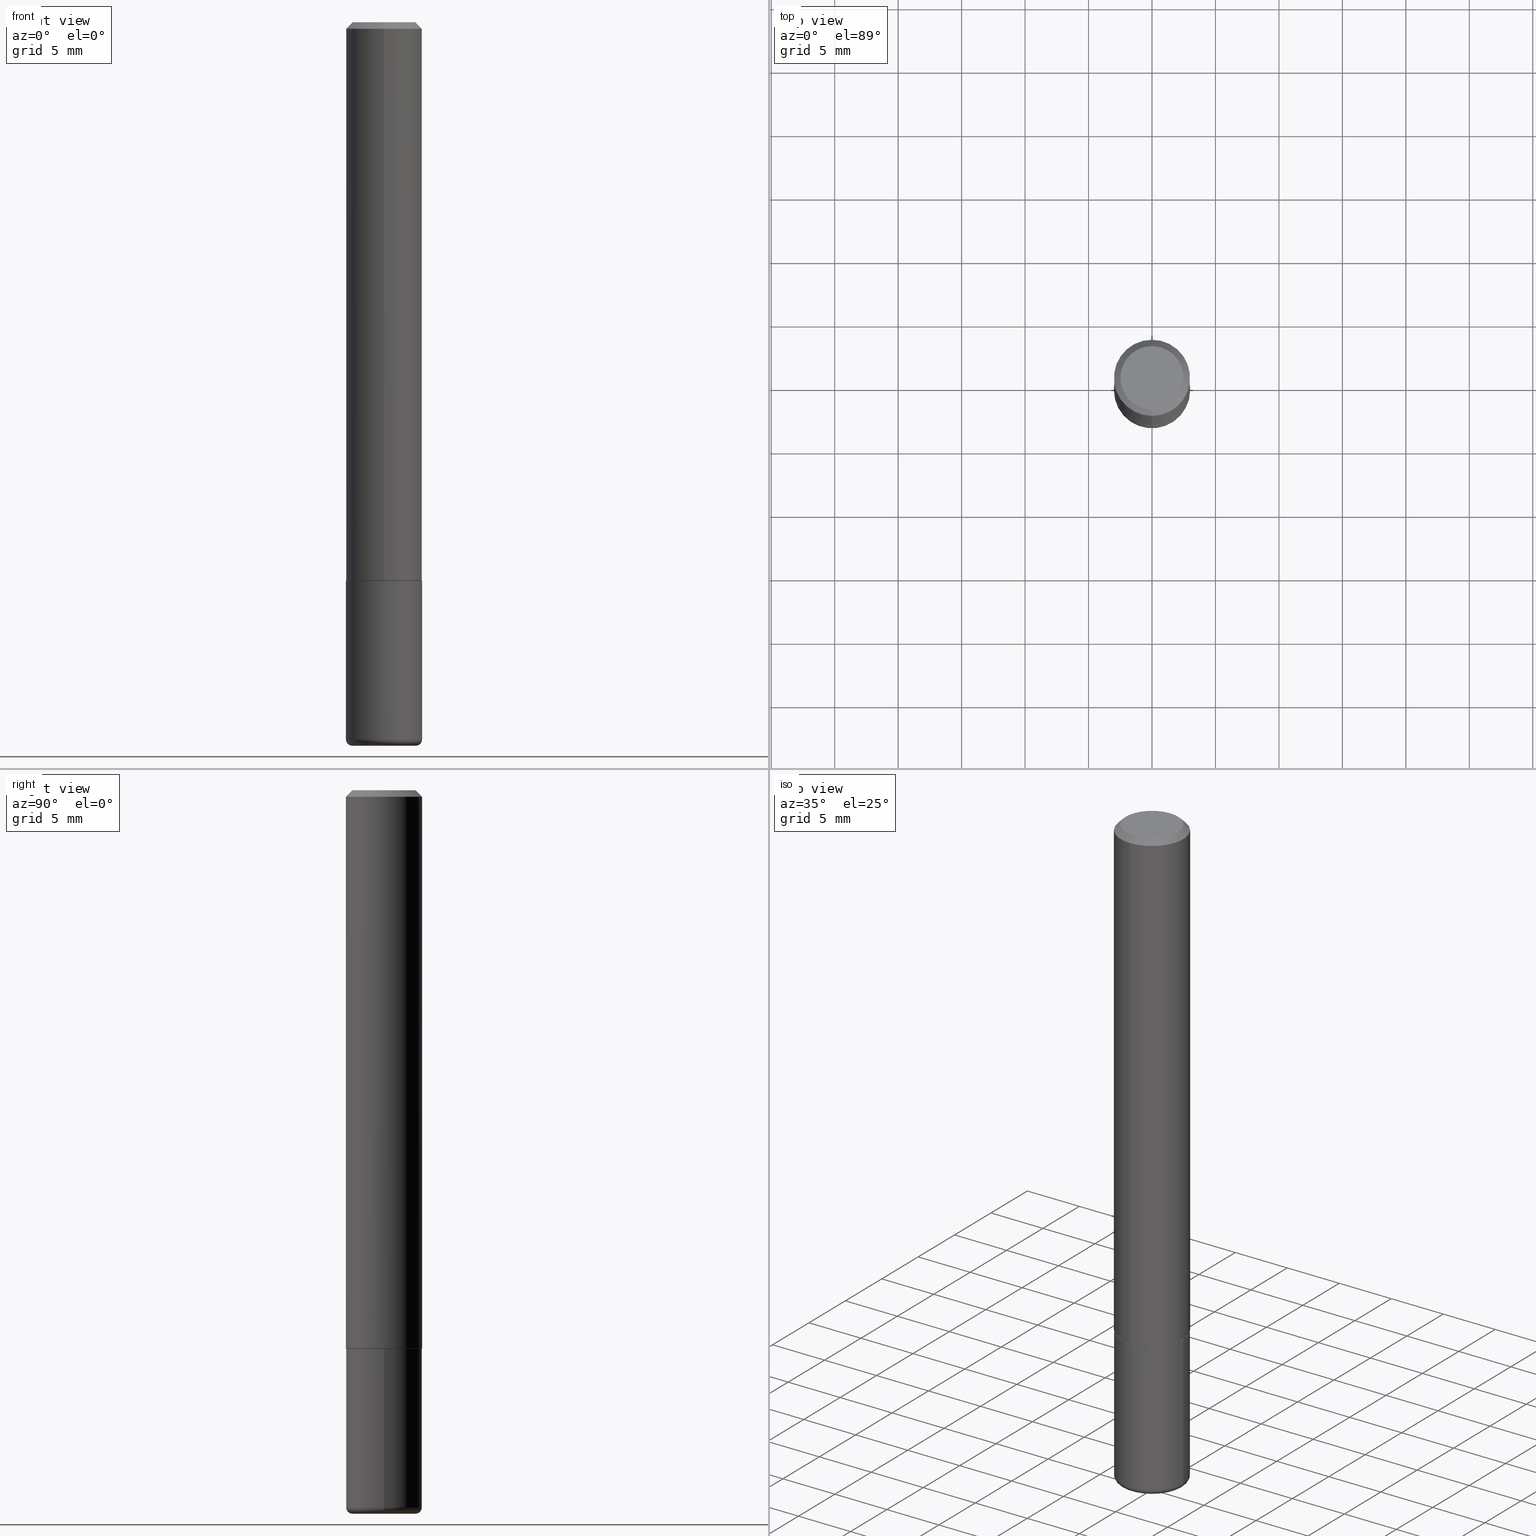
[diagram: canonical four-view strip — front | top / right | iso, engineering-drawing reading convention]
A machine part, canonical four-view strip (front | top / right | iso — engineering-drawing reading convention). The complete STEP part file that produces these views, byte-faithful:
ISO-10303-21;
HEADER;
FILE_DESCRIPTION (( 'STEP AP203' ),
    '1' );
FILE_NAME ('47120.STEP',
    '2024-03-05T20:40:49',
    ( '' ),
    ( '' ),
    'SwSTEP 2.0',
    'SolidWorks 2023',
    '' );
FILE_SCHEMA (( 'CONFIG_CONTROL_DESIGN' ));
ENDSEC;

DATA;
#1 = CONICAL_SURFACE ( 'NONE', #406, 0.1181000000000000383, 0.7853981633974473908 ) ;
#2 = DIRECTION ( 'NONE',  ( -1.000000000000000000, 6.982962677686265922E-15, -4.876176775795935793E-29 ) ) ;
#3 = CARTESIAN_POINT ( 'NONE',  ( 0.000000000000000000, 0.000000000000000000, 0.000000000000000000 ) ) ;
#4 = EDGE_CURVE ( 'NONE', #271, #364, #227, .T. ) ;
#5 = DIRECTION ( 'NONE',  ( -2.439979117146422706E-29, 3.499342886000279626E-15, 1.000000000000000000 ) ) ;
#6 = CIRCLE ( 'NONE', #399, 0.1181000000000000383 ) ;
#7 = AXIS2_PLACEMENT_3D ( 'NONE', #192, #72, #360 ) ;
#8 = APPLICATION_CONTEXT ( 'configuration controlled 3d designs of mechanical parts and assemblies' ) ;
#9 = DIRECTION ( 'NONE',  ( -2.439979117146422706E-29, 3.499342886000279626E-15, 1.000000000000000000 ) ) ;
#10 = EDGE_CURVE ( 'NONE', #392, #271, #176, .T. ) ;
#11 = CARTESIAN_POINT ( 'NONE',  ( 4.226775824632747097E-29, -6.061911681418283970E-15, -1.732299999999999729 ) ) ;
#12 = EDGE_LOOP ( 'NONE', ( #266, #337, #55, #304 ) ) ;
#13 = DIRECTION ( 'NONE',  ( -2.439979117146422706E-29, 3.499342886000279626E-15, 1.000000000000000000 ) ) ;
#14 = ORIENTED_EDGE ( 'NONE', *, *, #230, .F. ) ;
#15 = EDGE_CURVE ( 'NONE', #139, #248, #133, .T. ) ;
#16 = AXIS2_PLACEMENT_3D ( 'NONE', #200, #146, #144 ) ;
#17 = PERSON_AND_ORGANIZATION ( #265, #331 ) ;
#18 = ORIENTED_EDGE ( 'NONE', *, *, #223, .F. ) ;
#19 = ADVANCED_FACE ( 'NONE', ( #356 ), #323, .F. ) ;
#20 = MANIFOLD_SOLID_BREP ( 'Body-Move/Copy2[2]', #412 ) ;
#21 = ORIENTED_EDGE ( 'NONE', *, *, #10, .F. ) ;
#22 = ADVANCED_FACE ( 'NONE', ( #388 ), #218, .T. ) ;
#23 = EDGE_LOOP ( 'NONE', ( #110, #408, #53, #173 ) ) ;
#24 = CIRCLE ( 'NONE', #119, 0.09809999999999970133 ) ;
#25 = CC_DESIGN_SECURITY_CLASSIFICATION ( #204, ( #198 ) ) ;
#26 = COORDINATED_UNIVERSAL_TIME_OFFSET ( 5, 0, .BEHIND. ) ;
#27 = ORIENTED_EDGE ( 'NONE', *, *, #4, .F. ) ;
#28 = PERSON_AND_ORGANIZATION ( #265, #331 ) ;
#29 = ORIENTED_EDGE ( 'NONE', *, *, #362, .T. ) ;
#30 = EDGE_CURVE ( 'NONE', #248, #242, #183, .T. ) ;
#31 = CALENDAR_DATE ( 2024, 5, 3 ) ;
#32 = DIRECTION ( 'NONE',  ( -2.445468806185136597E-29, 3.491481338843145583E-15, 1.000000000000000000 ) ) ;
#33 = ADVANCED_FACE ( 'NONE', ( #216 ), #352, .T. ) ;
#34 = DIRECTION ( 'NONE',  ( -4.937700262164884886E-15, -0.7071067811865933139, 0.7071067811865017205 ) ) ;
#35 = APPROVAL_DATE_TIME ( #66, #141 ) ;
#36 = CARTESIAN_POINT ( 'NONE',  ( -0.09840000000000002911, -7.067277038134753844E-15, -2.224399999999999711 ) ) ;
#37 = CARTESIAN_POINT ( 'NONE',  ( 5.439700812478218014E-29, -7.766451090122692732E-15, -2.224399999999999711 ) ) ;
#38 = EDGE_CURVE ( 'NONE', #168, #334, #128, .T. ) ;
#39 = DIRECTION ( 'NONE',  ( -2.439979117146422425E-29, 3.499342886000280020E-15, 1.000000000000000000 ) ) ;
#40 = AXIS2_PLACEMENT_3D ( 'NONE', #36, #181, #284 ) ;
#41 = CARTESIAN_POINT ( 'NONE',  ( 7.548582654578846686E-16, 0.09809999999999970133, -5.225547001368359954E-17 ) ) ;
#42 = EDGE_CURVE ( 'NONE', #244, #364, #124, .T. ) ;
#43 = CARTESIAN_POINT ( 'NONE',  ( 0.000000000000000000, 0.000000000000000000, 0.000000000000000000 ) ) ;
#44 = CYLINDRICAL_SURFACE ( 'NONE', #365, 0.1181000000000001354 ) ;
#45 = VECTOR ( 'NONE', #306, 39.37007874015748143 ) ;
#46 = DIRECTION ( 'NONE',  ( -2.439979117146422706E-29, 3.499342886000279626E-15, 1.000000000000000000 ) ) ;
#47 = ORIENTED_EDGE ( 'NONE', *, *, #257, .T. ) ;
#48 = DIRECTION ( 'NONE',  ( -2.439979117146422706E-29, 3.499342886000279626E-15, 1.000000000000000000 ) ) ;
#49 = ADVANCED_FACE ( 'NONE', ( #381 ), #405, .T. ) ;
#50 = CALENDAR_DATE ( 2024, 5, 3 ) ;
#51 = ORIENTED_EDGE ( 'NONE', *, *, #230, .T. ) ;
#52 = AXIS2_PLACEMENT_3D ( 'NONE', #91, #254, #2 ) ;
#53 = ORIENTED_EDGE ( 'NONE', *, *, #4, .T. ) ;
#54 = DIRECTION ( 'NONE',  ( 5.024295867788404755E-15, 0.7071067811865981989, 0.7071067811864968355 ) ) ;
#55 = ORIENTED_EDGE ( 'NONE', *, *, #389, .T. ) ;
#56 = APPROVAL_DATE_TIME ( #340, #207 ) ;
#57 = ORIENTED_EDGE ( 'NONE', *, *, #401, .F. ) ;
#58 = CALENDAR_DATE ( 2024, 5, 3 ) ;
#59 = ORIENTED_EDGE ( 'NONE', *, *, #349, .F. ) ;
#60 = CARTESIAN_POINT ( 'NONE',  ( -0.1181000000000000522, -6.927300119190015324E-15, -2.224399999999999711 ) ) ;
#61 = CARTESIAN_POINT ( 'NONE',  ( -7.101072861929026047E-45, 1.018413994928867138E-30, 2.910300671029427939E-16 ) ) ;
#62 = PLANE ( 'NONE',  #385 ) ;
#63 = APPROVAL ( #270, 'UNSPECIFIED' ) ;
#64 = EDGE_CURVE ( 'NONE', #168, #231, #184, .T. ) ;
#65 = DIRECTION ( 'NONE',  ( -6.982962677686265922E-15, -1.000000000000000000, 3.505890868245044514E-15 ) ) ;
#66 = DATE_AND_TIME ( #31, #400 ) ;
#67 = DIRECTION ( 'NONE',  ( 1.000000000000000000, -6.982962677686269077E-15, 4.883557194083113462E-29 ) ) ;
#68 = DIRECTION ( 'NONE',  ( -2.445468806185136597E-29, 3.491481338843145583E-15, 1.000000000000000000 ) ) ;
#69 = VECTOR ( 'NONE', #39, 39.37007874015748143 ) ;
#70 = CC_DESIGN_PERSON_AND_ORGANIZATION_ASSIGNMENT ( #28, #123, ( #198 ) ) ;
#71 = FACE_OUTER_BOUND ( 'NONE', #151, .T. ) ;
#72 = DIRECTION ( 'NONE',  ( -2.445468806185136597E-29, 3.491481338843145583E-15, 1.000000000000000000 ) ) ;
#73 = DIRECTION ( 'NONE',  ( -2.445468806185136597E-29, 3.491481338843145583E-15, 1.000000000000000000 ) ) ;
#74 = ORIENTED_EDGE ( 'NONE', *, *, #189, .T. ) ;
#75 = CIRCLE ( 'NONE', #7, 0.1181000000000000383 ) ;
#76 = CIRCLE ( 'NONE', #190, 0.01970000000000002999 ) ;
#77 = DIRECTION ( 'NONE',  ( 4.937700262164543309E-15, 0.7071067811865444641, -0.7071067811865505703 ) ) ;
#78 = VERTEX_POINT ( 'NONE', #283 ) ;
#79 = DIRECTION ( 'NONE',  ( -6.982962677686265133E-15, -1.000000000000000000, 4.626330217890359081E-15 ) ) ;
#80 = ORIENTED_EDGE ( 'NONE', *, *, #226, .F. ) ;
#81 = CC_DESIGN_PERSON_AND_ORGANIZATION_ASSIGNMENT ( #272, #245, ( #318 ) ) ;
#82 = LOCAL_TIME ( 15, 40, 49.00000000000000000, #282 ) ;
#83 = ORIENTED_EDGE ( 'NONE', *, *, #349, .T. ) ;
#84 = PRODUCT_DEFINITION_SHAPE ( 'NONE', 'NONE',  #130 ) ;
#85 = APPROVAL_STATUS ( 'not_yet_approved' ) ;
#86 = ORIENTED_EDGE ( 'NONE', *, *, #30, .T. ) ;
#87 = APPLICATION_PROTOCOL_DEFINITION ( 'international standard', 'config_control_design', 1994, #232 ) ;
#88 = ORIENTED_EDGE ( 'NONE', *, *, #125, .T. ) ;
#89 = CIRCLE ( 'NONE', #196, 0.1181000000000000383 ) ;
#90 = CALENDAR_DATE ( 2024, 5, 3 ) ;
#91 = CARTESIAN_POINT ( 'NONE',  ( 5.487876547960064752E-29, -7.835233272497900762E-15, -2.244099999999999540 ) ) ;
#92 = COORDINATED_UNIVERSAL_TIME_OFFSET ( 5, 0, .BEHIND. ) ;
#93 = DIRECTION ( 'NONE',  ( -2.439979117146422706E-29, 3.499342886000279626E-15, 1.000000000000000000 ) ) ;
#94 = DIRECTION ( 'NONE',  ( 1.000000000000000000, -6.982962677686262766E-15, 0.000000000000000000 ) ) ;
#95 = CIRCLE ( 'NONE', #158, 0.09840000000000002911 ) ;
#96 =( GEOMETRIC_REPRESENTATION_CONTEXT ( 3 ) GLOBAL_UNCERTAINTY_ASSIGNED_CONTEXT ( ( #256 ) ) GLOBAL_UNIT_ASSIGNED_CONTEXT ( ( #338, #369, #172 ) ) REPRESENTATION_CONTEXT ( 'NONE', 'WORKASPACE' ) );
#97 = CARTESIAN_POINT ( 'NONE',  ( 4.236285612954511832E-29, -6.048293123277980289E-15, -1.732299999999999729 ) ) ;
#98 = DESIGN_CONTEXT ( 'detailed design', #232, 'design' ) ;
#99 = CARTESIAN_POINT ( 'NONE',  ( 5.439700812478216893E-29, -7.766451090122692732E-15, -2.224399999999999711 ) ) ;
#100 = DIRECTION ( 'NONE',  ( -6.982962677686265922E-15, -1.000000000000000000, 3.499342886000279626E-15 ) ) ;
#101 = CARTESIAN_POINT ( 'NONE',  ( -7.101072861929026047E-45, 1.018413994928867138E-30, 2.910300671029427939E-16 ) ) ;
#102 = CARTESIAN_POINT ( 'NONE',  ( -8.246878922347489529E-16, -0.1181000000000001354, 4.132723948366334846E-16 ) ) ;
#103 = CARTESIAN_POINT ( 'NONE',  ( -8.246878922347075377E-16, -0.1181000000000063110, -1.731299999999999173 ) ) ;
#104 = APPROVAL_PERSON_ORGANIZATION ( #316, #141, #182 ) ;
#105 = CARTESIAN_POINT ( 'NONE',  ( 4.224335845515600924E-29, -6.058412338532283405E-15, -1.731299999999999617 ) ) ;
#106 = APPROVAL_ROLE ( '' ) ;
#107 = EDGE_CURVE ( 'NONE', #206, #334, #6, .T. ) ;
#108 = CARTESIAN_POINT ( 'NONE',  ( -8.102248135368175393E-16, -0.1181000000000001077, -0.01999999999999966388 ) ) ;
#109 = LINE ( 'NONE', #302, #45 ) ;
#110 = ORIENTED_EDGE ( 'NONE', *, *, #125, .F. ) ;
#111 = AXIS2_PLACEMENT_3D ( 'NONE', #320, #126, #258 ) ;
#112 = AXIS2_PLACEMENT_3D ( 'NONE', #313, #277, #79 ) ;
#113 = VECTOR ( 'NONE', #54, 39.37007874015748143 ) ;
#114 = APPLICATION_PROTOCOL_DEFINITION ( 'international standard', 'config_control_design', 1994, #8 ) ;
#115 = EDGE_LOOP ( 'NONE', ( #329, #203 ) ) ;
#116 = VERTEX_POINT ( 'NONE', #348 ) ;
#117 = ADVANCED_FACE ( 'NONE', ( #317 ), #212, .T. ) ;
#118 = EDGE_LOOP ( 'NONE', ( #59, #300, #86, #293 ) ) ;
#119 = AXIS2_PLACEMENT_3D ( 'NONE', #101, #9, #100 ) ;
#120 = CONICAL_SURFACE ( 'NONE', #296, 0.1171000000000000513, 0.7853981633975165577 ) ;
#121 = SHAPE_DEFINITION_REPRESENTATION ( #84, #210 ) ;
#122 = DIRECTION ( 'NONE',  ( -2.445468806185136597E-29, 3.491481338843145583E-15, 1.000000000000000000 ) ) ;
#123 = PERSON_AND_ORGANIZATION_ROLE ( 'design_supplier' ) ;
#124 = LINE ( 'NONE', #159, #69 ) ;
#125 = EDGE_CURVE ( 'NONE', #392, #278, #343, .T. ) ;
#126 = DIRECTION ( 'NONE',  ( 2.439979117146422145E-29, -3.499342886000280020E-15, -1.000000000000000000 ) ) ;
#127 = AXIS2_PLACEMENT_3D ( 'NONE', #37, #122, #94 ) ;
#128 = LINE ( 'NONE', #154, #163 ) ;
#129 = DIRECTION ( 'NONE',  ( 2.439979117146422706E-29, -3.499342886000279626E-15, -1.000000000000000000 ) ) ;
#130 = PRODUCT_DEFINITION ( 'UNKNOWN', '', #198, #98 ) ;
#131 = CARTESIAN_POINT ( 'NONE',  ( 8.246878922347486570E-16, 0.1180999999999999689, -0.02000000000000048961 ) ) ;
#132 = DIRECTION ( 'NONE',  ( -2.439979117146422425E-29, 3.499342886000280020E-15, 1.000000000000000000 ) ) ;
#133 = CIRCLE ( 'NONE', #140, 0.1171000000000000513 ) ;
#134 = CARTESIAN_POINT ( 'NONE',  ( 4.879958234292863908E-31, -6.998685772000586467E-17, -0.02000000000000007674 ) ) ;
#135 = CC_DESIGN_DATE_AND_TIME_ASSIGNMENT ( #178, #169, ( #130 ) ) ;
#136 = EDGE_CURVE ( 'NONE', #78, #116, #95, .T. ) ;
#137 = DIRECTION ( 'NONE',  ( 2.439979117146422706E-29, -3.499342886000279626E-15, -1.000000000000000000 ) ) ;
#138 = DIRECTION ( 'NONE',  ( -6.982962677686266711E-15, -1.000000000000000000, 3.491481338843145583E-15 ) ) ;
#139 = VERTEX_POINT ( 'NONE', #351 ) ;
#140 = AXIS2_PLACEMENT_3D ( 'NONE', #417, #280, #413 ) ;
#141 = APPROVAL ( #416, 'UNSPECIFIED' ) ;
#142 = PERSON_AND_ORGANIZATION ( #265, #331 ) ;
#143 = ORIENTED_EDGE ( 'NONE', *, *, #189, .F. ) ;
#144 = DIRECTION ( 'NONE',  ( 1.000000000000000000, 0.000000000000000000, 0.000000000000000000 ) ) ;
#145 = ORIENTED_EDGE ( 'NONE', *, *, #136, .F. ) ;
#146 = DIRECTION ( 'NONE',  ( 0.000000000000000000, 0.000000000000000000, 1.000000000000000000 ) ) ;
#147 = CARTESIAN_POINT ( 'NONE',  ( 4.879958234292863908E-31, -6.998685772000586467E-17, -0.02000000000000007674 ) ) ;
#148 = CC_DESIGN_APPROVAL ( #207, ( #130 ) ) ;
#149 = CARTESIAN_POINT ( 'NONE',  ( 8.246878922347486570E-16, 0.1180999999999999689, -0.02000000000000048961 ) ) ;
#150 = ORIENTED_EDGE ( 'NONE', *, *, #285, .F. ) ;
#151 = EDGE_LOOP ( 'NONE', ( #51, #209, #407, #57 ) ) ;
#152 = ADVANCED_FACE ( 'NONE', ( #325 ), #62, .F. ) ;
#153 = CALENDAR_DATE ( 2024, 5, 3 ) ;
#154 = CARTESIAN_POINT ( 'NONE',  ( -0.1181000000000000383, 8.391509709326785915E-16, -5.809262341591045886E-30 ) ) ;
#155 = MANIFOLD_SOLID_BREP ( 'Body-Move/Copy2[1]', #237 ) ;
#156 = DIRECTION ( 'NONE',  ( -2.445468806185136597E-29, 3.491481338843145583E-15, 1.000000000000000000 ) ) ;
#157 = DIRECTION ( 'NONE',  ( -2.445468806185136877E-29, 3.491481338843145188E-15, 1.000000000000000000 ) ) ;
#158 = AXIS2_PLACEMENT_3D ( 'NONE', #290, #253, #383 ) ;
#159 = CARTESIAN_POINT ( 'NONE',  ( 8.391509709326791832E-16, 0.1181000000000001354, -4.132723948366334846E-16 ) ) ;
#160 = DIRECTION ( 'NONE',  ( -6.982962677686266711E-15, -1.000000000000000000, 2.332918867347789938E-15 ) ) ;
#161 = DIRECTION ( 'NONE',  ( -6.982962677686265922E-15, -1.000000000000000000, 3.499342886000279626E-15 ) ) ;
#162 = ORIENTED_EDGE ( 'NONE', *, *, #401, .T. ) ;
#163 = VECTOR ( 'NONE', #157, 39.37007874015748143 ) ;
#164 = CARTESIAN_POINT ( 'NONE',  ( -8.177049295570199457E-16, -0.1171000000000061020, -1.732299999999999507 ) ) ;
#165 = CIRCLE ( 'NONE', #239, 0.1181000000000002603 ) ;
#166 = FACE_OUTER_BOUND ( 'NONE', #115, .T. ) ;
#167 = CARTESIAN_POINT ( 'NONE',  ( -0.1181000000000000383, -6.068221135767657525E-15, -1.732299999999999729 ) ) ;
#168 = VERTEX_POINT ( 'NONE', #60 ) ;
#169 = DATE_TIME_ROLE ( 'creation_date' ) ;
#170 = ORIENTED_EDGE ( 'NONE', *, *, #64, .T. ) ;
#171 = EDGE_LOOP ( 'NONE', ( #307, #279, #14, #404 ) ) ;
#172 =( NAMED_UNIT ( * ) SI_UNIT ( $, .STERADIAN. ) SOLID_ANGLE_UNIT ( ) );
#173 = ORIENTED_EDGE ( 'NONE', *, *, #327, .F. ) ;
#174 = PERSON_AND_ORGANIZATION ( #265, #331 ) ;
#175 = EDGE_CURVE ( 'NONE', #78, #168, #268, .T. ) ;
#176 = LINE ( 'NONE', #108, #310 ) ;
#177 = VECTOR ( 'NONE', #77, 39.37007874015748143 ) ;
#178 = DATE_AND_TIME ( #58, #386 ) ;
#179 = ORIENTED_EDGE ( 'NONE', *, *, #395, .F. ) ;
#180 = PERSON_AND_ORGANIZATION_ROLE ( 'classification_officer' ) ;
#181 = DIRECTION ( 'NONE',  ( 7.105427357601001859E-15, 1.000000000000000000, -3.491481338843145583E-15 ) ) ;
#182 = APPROVAL_ROLE ( '' ) ;
#183 = LINE ( 'NONE', #251, #380 ) ;
#184 = CIRCLE ( 'NONE', #127, 0.1181000000000000383 ) ;
#185 = AXIS2_PLACEMENT_3D ( 'NONE', #330, #5, #233 ) ;
#186 = DIRECTION ( 'NONE',  ( 1.000000000000000000, -6.982962677686270655E-15, 0.000000000000000000 ) ) ;
#187 = FACE_OUTER_BOUND ( 'NONE', #295, .T. ) ;
#188 = DIRECTION ( 'NONE',  ( -6.982962677686265922E-15, -1.000000000000000000, 3.499342886000279626E-15 ) ) ;
#189 = EDGE_CURVE ( 'NONE', #364, #271, #89, .T. ) ;
#190 = AXIS2_PLACEMENT_3D ( 'NONE', #372, #138, #247 ) ;
#191 = FACE_OUTER_BOUND ( 'NONE', #374, .T. ) ;
#192 = CARTESIAN_POINT ( 'NONE',  ( 5.439700812478218014E-29, -7.766451090122692732E-15, -2.224399999999999711 ) ) ;
#193 = CC_DESIGN_PERSON_AND_ORGANIZATION_ASSIGNMENT ( #319, #180, ( #204 ) ) ;
#194 = ADVANCED_FACE ( 'NONE', ( #187 ), #324, .T. ) ;
#195 = CARTESIAN_POINT ( 'NONE',  ( -8.102248135368175393E-16, -0.1181000000000001077, -0.01999999999999966388 ) ) ;
#196 = AXIS2_PLACEMENT_3D ( 'NONE', #222, #355, #65 ) ;
#197 = FACE_OUTER_BOUND ( 'NONE', #211, .T. ) ;
#198 = PRODUCT_DEFINITION_FORMATION_WITH_SPECIFIED_SOURCE ( 'ANY', '', #318, .NOT_KNOWN. ) ;
#199 = CARTESIAN_POINT ( 'NONE',  ( 4.236285612954511832E-29, -6.048293123277980289E-15, -1.732299999999999729 ) ) ;
#200 = CARTESIAN_POINT ( 'NONE',  ( 0.000000000000000000, 0.000000000000000000, 0.000000000000000000 ) ) ;
#201 = ADVANCED_FACE ( 'NONE', ( #225 ), #260, .T. ) ;
#202 = ORIENTED_EDGE ( 'NONE', *, *, #226, .T. ) ;
#203 = ORIENTED_EDGE ( 'NONE', *, *, #15, .F. ) ;
#204 = SECURITY_CLASSIFICATION ( '', '', #387 ) ;
#205 =( LENGTH_UNIT ( ) NAMED_UNIT ( * ) SI_UNIT ( $, .METRE. ) );
#206 = VERTEX_POINT ( 'NONE', #297 ) ;
#207 = APPROVAL ( #85, 'UNSPECIFIED' ) ;
#208 = APPROVAL_ROLE ( '' ) ;
#209 = ORIENTED_EDGE ( 'NONE', *, *, #38, .T. ) ;
#210 = ADVANCED_BREP_SHAPE_REPRESENTATION ( '47120', ( #155, #20, #16 ), #96 ) ;
#211 = EDGE_LOOP ( 'NONE', ( #249, #29, #378, #143 ) ) ;
#212 = CONICAL_SURFACE ( 'NONE', #275, 0.1171000000000000513, 0.7853981633975165577 ) ;
#213 = CC_DESIGN_APPROVAL ( #141, ( #204 ) ) ;
#214 = DIRECTION ( 'NONE',  ( 6.982962677686265922E-15, 1.000000000000000000, -3.505890868245044514E-15 ) ) ;
#215 = CC_DESIGN_DATE_AND_TIME_ASSIGNMENT ( #221, #346, ( #204 ) ) ;
#216 = FACE_OUTER_BOUND ( 'NONE', #171, .T. ) ;
#217 = DATE_AND_TIME ( #153, #82 ) ;
#218 = PLANE ( 'NONE',  #52 ) ;
#219 = AXIS2_PLACEMENT_3D ( 'NONE', #61, #93, #188 ) ;
#220 = AXIS2_PLACEMENT_3D ( 'NONE', #263, #363, #332 ) ;
#221 = DATE_AND_TIME ( #90, #359 ) ;
#222 = CARTESIAN_POINT ( 'NONE',  ( 4.879958234292863908E-31, -6.998685772000586467E-17, -0.02000000000000007674 ) ) ;
#223 = EDGE_CURVE ( 'NONE', #278, #392, #24, .T. ) ;
#224 = CARTESIAN_POINT ( 'NONE',  ( 4.236285612954511832E-29, -6.048293123277980289E-15, -1.732299999999999729 ) ) ;
#225 = FACE_OUTER_BOUND ( 'NONE', #246, .T. ) ;
#226 = EDGE_CURVE ( 'NONE', #334, #206, #281, .T. ) ;
#227 = CIRCLE ( 'NONE', #289, 0.1181000000000000383 ) ;
#228 = CIRCLE ( 'NONE', #112, 0.1181000000000002603 ) ;
#229 = CARTESIAN_POINT ( 'NONE',  ( 0.1181000000000000522, -8.591138982357440995E-15, -2.224399999999999711 ) ) ;
#230 = EDGE_CURVE ( 'NONE', #231, #168, #75, .T. ) ;
#231 = VERTEX_POINT ( 'NONE', #229 ) ;
#232 = APPLICATION_CONTEXT ( 'configuration controlled 3d designs of mechanical parts and assemblies' ) ;
#233 = DIRECTION ( 'NONE',  ( -6.982962677686266711E-15, -1.000000000000000000, 2.332918867347789938E-15 ) ) ;
#234 = EDGE_LOOP ( 'NONE', ( #339, #88 ) ) ;
#235 = CYLINDRICAL_SURFACE ( 'NONE', #220, 0.1181000000000000383 ) ;
#236 = ORIENTED_EDGE ( 'NONE', *, *, #368, .F. ) ;
#237 = CLOSED_SHELL ( 'NONE', ( #286, #33, #152, #201, #241, #22 ) ) ;
#238 = FACE_OUTER_BOUND ( 'NONE', #12, .T. ) ;
#239 = AXIS2_PLACEMENT_3D ( 'NONE', #105, #342, #403 ) ;
#240 = CARTESIAN_POINT ( 'NONE',  ( -7.416198335591013204E-16, -0.09809999999999970133, 6.343156042195691812E-16 ) ) ;
#241 = ADVANCED_FACE ( 'NONE', ( #238 ), #414, .T. ) ;
#242 = VERTEX_POINT ( 'NONE', #103 ) ;
#243 = DIRECTION ( 'NONE',  ( 1.000000000000000000, -6.982962677686269866E-15, 0.000000000000000000 ) ) ;
#244 = VERTEX_POINT ( 'NONE', #394 ) ;
#245 = PERSON_AND_ORGANIZATION_ROLE ( 'design_owner' ) ;
#246 = EDGE_LOOP ( 'NONE', ( #402, #170, #162, #80 ) ) ;
#247 = DIRECTION ( 'NONE',  ( 1.000000000000000000, -6.982962677686267499E-15, 0.000000000000000000 ) ) ;
#248 = VERTEX_POINT ( 'NONE', #164 ) ;
#249 = ORIENTED_EDGE ( 'NONE', *, *, #42, .F. ) ;
#250 = CC_DESIGN_APPROVAL ( #63, ( #198 ) ) ;
#251 = CARTESIAN_POINT ( 'NONE',  ( -8.177049295570199457E-16, -0.1171000000000061020, -1.732299999999999507 ) ) ;
#252 = APPROVAL_DATE_TIME ( #217, #63 ) ;
#253 = DIRECTION ( 'NONE',  ( -2.445468806185136597E-29, 3.491481338843145583E-15, 1.000000000000000000 ) ) ;
#254 = DIRECTION ( 'NONE',  ( 2.438088387897960049E-29, -3.491481338843145188E-15, -1.000000000000000000 ) ) ;
#255 = AXIS2_PLACEMENT_3D ( 'NONE', #199, #73, #294 ) ;
#256 = UNCERTAINTY_MEASURE_WITH_UNIT (LENGTH_MEASURE( 1.000000000000000082E-05 ), #338, 'distance_accuracy_value', 'NONE');
#257 = EDGE_CURVE ( 'NONE', #248, #139, #345, .T. ) ;
#258 = DIRECTION ( 'NONE',  ( 6.982962677686265922E-15, 1.000000000000000000, -3.499342886000280020E-15 ) ) ;
#259 = ADVANCED_FACE ( 'NONE', ( #191 ), #1, .T. ) ;
#260 = CYLINDRICAL_SURFACE ( 'NONE', #358, 0.1181000000000000383 ) ;
#261 = LINE ( 'NONE', #391, #113 ) ;
#262 = AXIS2_PLACEMENT_3D ( 'NONE', #99, #32, #67 ) ;
#263 = CARTESIAN_POINT ( 'NONE',  ( 0.000000000000000000, 0.000000000000000000, 0.000000000000000000 ) ) ;
#264 = DIRECTION ( 'NONE',  ( -6.982962677686265922E-15, -1.000000000000000000, 3.499342886000279626E-15 ) ) ;
#265 = PERSON ( 'UNSPECIFIED', 'UNSPECIFIED', 'UNSPECIFIED', ('UNSPECIFIED'), ('UNSPECIFIED'), ('UNSPECIFIED') ) ;
#266 = ORIENTED_EDGE ( 'NONE', *, *, #175, .F. ) ;
#267 = DIRECTION ( 'NONE',  ( -6.982962677686265922E-15, -1.000000000000000000, 3.499342886000280020E-15 ) ) ;
#268 = CIRCLE ( 'NONE', #40, 0.01970000000000002999 ) ;
#269 = CARTESIAN_POINT ( 'NONE',  ( 5.487876547960064752E-29, -7.835233272497900762E-15, -2.244099999999999540 ) ) ;
#270 = APPROVAL_STATUS ( 'not_yet_approved' ) ;
#271 = VERTEX_POINT ( 'NONE', #195 ) ;
#272 = PERSON_AND_ORGANIZATION ( #265, #331 ) ;
#273 = ADVANCED_FACE ( 'NONE', ( #197 ), #44, .T. ) ;
#274 = ORIENTED_EDGE ( 'NONE', *, *, #30, .F. ) ;
#275 = AXIS2_PLACEMENT_3D ( 'NONE', #415, #287, #382 ) ;
#276 = DIRECTION ( 'NONE',  ( -2.439979117146422706E-29, 3.499342886000279626E-15, 1.000000000000000000 ) ) ;
#277 = DIRECTION ( 'NONE',  ( -2.439979117146422706E-29, 3.499342886000279626E-15, 1.000000000000000000 ) ) ;
#278 = VERTEX_POINT ( 'NONE', #41 ) ;
#279 = ORIENTED_EDGE ( 'NONE', *, *, #175, .T. ) ;
#280 = DIRECTION ( 'NONE',  ( -2.439979117146422706E-29, 3.499342886000279626E-15, 1.000000000000000000 ) ) ;
#281 = CIRCLE ( 'NONE', #255, 0.1181000000000000383 ) ;
#282 = COORDINATED_UNIVERSAL_TIME_OFFSET ( 5, 0, .BEHIND. ) ;
#283 = CARTESIAN_POINT ( 'NONE',  ( -0.09840000000000002911, -7.031679669849990177E-15, -2.244099999999999540 ) ) ;
#284 = DIRECTION ( 'NONE',  ( -1.000000000000000000, 7.105427357601014480E-15, 0.000000000000000000 ) ) ;
#285 = EDGE_CURVE ( 'NONE', #242, #271, #396, .T. ) ;
#286 = ADVANCED_FACE ( 'NONE', ( #71 ), #235, .T. ) ;
#287 = DIRECTION ( 'NONE',  ( -2.439979117146422706E-29, 3.499342886000279626E-15, 1.000000000000000000 ) ) ;
#288 = APPROVAL_PERSON_ORGANIZATION ( #17, #207, #208 ) ;
#289 = AXIS2_PLACEMENT_3D ( 'NONE', #147, #276, #341 ) ;
#290 = CARTESIAN_POINT ( 'NONE',  ( 5.487876547960064752E-29, -7.835233272497900762E-15, -2.244099999999999540 ) ) ;
#291 = ADVANCED_FACE ( 'NONE', ( #366 ), #120, .T. ) ;
#292 = LINE ( 'NONE', #131, #177 ) ;
#293 = ORIENTED_EDGE ( 'NONE', *, *, #362, .F. ) ;
#294 = DIRECTION ( 'NONE',  ( 1.000000000000000000, -6.982962677686270655E-15, 0.000000000000000000 ) ) ;
#295 = EDGE_LOOP ( 'NONE', ( #398, #410, #27, #150 ) ) ;
#296 = AXIS2_PLACEMENT_3D ( 'NONE', #299, #46, #160 ) ;
#297 = CARTESIAN_POINT ( 'NONE',  ( 0.1181000000000000383, -6.872981015512729341E-15, -1.732299999999999729 ) ) ;
#298 = PLANE ( 'NONE',  #353 ) ;
#299 = CARTESIAN_POINT ( 'NONE',  ( 4.226775824632747097E-29, -6.061911681418283970E-15, -1.732299999999999729 ) ) ;
#300 = ORIENTED_EDGE ( 'NONE', *, *, #15, .T. ) ;
#301 = AXIS2_PLACEMENT_3D ( 'NONE', #3, #13, #161 ) ;
#302 = CARTESIAN_POINT ( 'NONE',  ( 0.1181000000000000383, -8.246878922347483612E-16, 5.758764772215001842E-30 ) ) ;
#303 = CIRCLE ( 'NONE', #336, 0.09840000000000002911 ) ;
#304 = ORIENTED_EDGE ( 'NONE', *, *, #64, .F. ) ;
#305 = CC_DESIGN_PERSON_AND_ORGANIZATION_ASSIGNMENT ( #174, #309, ( #130 ) ) ;
#306 = DIRECTION ( 'NONE',  ( -2.445468806185136877E-29, 3.491481338843145188E-15, 1.000000000000000000 ) ) ;
#307 = ORIENTED_EDGE ( 'NONE', *, *, #395, .T. ) ;
#308 = ORIENTED_EDGE ( 'NONE', *, *, #107, .T. ) ;
#309 = PERSON_AND_ORGANIZATION_ROLE ( 'creator' ) ;
#310 = VECTOR ( 'NONE', #311, 39.37007874015748143 ) ;
#311 = DIRECTION ( 'NONE',  ( -4.851104656540959542E-15, -0.7071067811865493491, -0.7071067811865456854 ) ) ;
#312 = LOCAL_TIME ( 15, 40, 49.00000000000000000, #375 ) ;
#313 = CARTESIAN_POINT ( 'NONE',  ( 4.224335845515600924E-29, -6.058412338532283405E-15, -1.731299999999999617 ) ) ;
#314 = EDGE_LOOP ( 'NONE', ( #179, #145 ) ) ;
#315 = ADVANCED_FACE ( 'NONE', ( #166 ), #298, .F. ) ;
#316 = PERSON_AND_ORGANIZATION ( #265, #331 ) ;
#317 = FACE_OUTER_BOUND ( 'NONE', #370, .T. ) ;
#318 = PRODUCT ( '47120', '47120', '', ( #377 ) ) ;
#319 = PERSON_AND_ORGANIZATION ( #265, #331 ) ;
#320 = CARTESIAN_POINT ( 'NONE',  ( 6.850286386810205815E-16, 0.09809999999999970133, -1.977705035651549903E-16 ) ) ;
#321 = CC_DESIGN_PERSON_AND_ORGANIZATION_ASSIGNMENT ( #350, #322, ( #198 ) ) ;
#322 = PERSON_AND_ORGANIZATION_ROLE ( 'creator' ) ;
#323 = PLANE ( 'NONE',  #111 ) ;
#324 = CYLINDRICAL_SURFACE ( 'NONE', #301, 0.1181000000000001354 ) ;
#325 = FACE_OUTER_BOUND ( 'NONE', #376, .T. ) ;
#326 = DIRECTION ( 'NONE',  ( 6.982962677686265922E-15, 1.000000000000000000, -3.505890868245044514E-15 ) ) ;
#327 = EDGE_CURVE ( 'NONE', #278, #364, #292, .T. ) ;
#328 = DIRECTION ( 'NONE',  ( 1.000000000000000000, -6.982962677686269077E-15, 4.883557194083113462E-29 ) ) ;
#329 = ORIENTED_EDGE ( 'NONE', *, *, #257, .F. ) ;
#330 = CARTESIAN_POINT ( 'NONE',  ( 4.226775824632747097E-29, -6.061911681418283970E-15, -1.732299999999999729 ) ) ;
#331 = ORGANIZATION ( 'UNSPECIFIED', 'UNSPECIFIED', '' ) ;
#332 = DIRECTION ( 'NONE',  ( 1.000000000000000000, -6.982962677686266711E-15, 4.876176775795935793E-29 ) ) ;
#333 = DIRECTION ( 'NONE',  ( -2.439979117146422145E-29, 3.499342886000280020E-15, 1.000000000000000000 ) ) ;
#334 = VERTEX_POINT ( 'NONE', #167 ) ;
#335 = LENGTH_MEASURE_WITH_UNIT ( LENGTH_MEASURE( 0.02539999999999999897 ), #205 );
#336 = AXIS2_PLACEMENT_3D ( 'NONE', #269, #367, #243 ) ;
#337 = ORIENTED_EDGE ( 'NONE', *, *, #136, .T. ) ;
#338 =( CONVERSION_BASED_UNIT ( 'INCH', #335 ) LENGTH_UNIT ( ) NAMED_UNIT ( #409 ) );
#339 = ORIENTED_EDGE ( 'NONE', *, *, #223, .T. ) ;
#340 = DATE_AND_TIME ( #50, #312 ) ;
#341 = DIRECTION ( 'NONE',  ( -6.982962677686265922E-15, -1.000000000000000000, 3.505890868245044514E-15 ) ) ;
#342 = DIRECTION ( 'NONE',  ( -2.439979117146422706E-29, 3.499342886000279626E-15, 1.000000000000000000 ) ) ;
#343 = CIRCLE ( 'NONE', #219, 0.09809999999999970133 ) ;
#344 = ORIENTED_EDGE ( 'NONE', *, *, #327, .T. ) ;
#345 = CIRCLE ( 'NONE', #185, 0.1171000000000000513 ) ;
#346 = DATE_TIME_ROLE ( 'classification_date' ) ;
#347 = DIRECTION ( 'NONE',  ( -1.000000000000000000, 6.982962677686265922E-15, -4.876176775795935793E-29 ) ) ;
#348 = CARTESIAN_POINT ( 'NONE',  ( 0.09840000000000002911, -8.522356799982231388E-15, -2.244099999999999540 ) ) ;
#349 = EDGE_CURVE ( 'NONE', #139, #244, #261, .T. ) ;
#350 = PERSON_AND_ORGANIZATION ( #265, #331 ) ;
#351 = CARTESIAN_POINT ( 'NONE',  ( 8.355982572539209817E-16, 0.1170999999999939867, -1.732299999999999951 ) ) ;
#352 = TOROIDAL_SURFACE ( 'NONE', #262, 0.09840000000000002911, 0.01970000000000002999 ) ;
#353 = AXIS2_PLACEMENT_3D ( 'NONE', #11, #333, #267 ) ;
#354 = VECTOR ( 'NONE', #132, 39.37007874015748143 ) ;
#355 = DIRECTION ( 'NONE',  ( -2.439979117146422706E-29, 3.499342886000279626E-15, 1.000000000000000000 ) ) ;
#356 = FACE_OUTER_BOUND ( 'NONE', #234, .T. ) ;
#357 = CARTESIAN_POINT ( 'NONE',  ( 5.439700812478216893E-29, -7.766451090122692732E-15, -2.224399999999999711 ) ) ;
#358 = AXIS2_PLACEMENT_3D ( 'NONE', #390, #68, #361 ) ;
#359 = LOCAL_TIME ( 15, 40, 49.00000000000000000, #379 ) ;
#360 = DIRECTION ( 'NONE',  ( 1.000000000000000000, -6.982962677686262766E-15, 0.000000000000000000 ) ) ;
#361 = DIRECTION ( 'NONE',  ( 1.000000000000000000, -6.982962677686266711E-15, 4.876176775795935793E-29 ) ) ;
#362 = EDGE_CURVE ( 'NONE', #244, #242, #165, .T. ) ;
#363 = DIRECTION ( 'NONE',  ( -2.445468806185136597E-29, 3.491481338843145583E-15, 1.000000000000000000 ) ) ;
#364 = VERTEX_POINT ( 'NONE', #149 ) ;
#365 = AXIS2_PLACEMENT_3D ( 'NONE', #43, #48, #264 ) ;
#366 = FACE_OUTER_BOUND ( 'NONE', #118, .T. ) ;
#367 = DIRECTION ( 'NONE',  ( -2.445468806185136597E-29, 3.491481338843145583E-15, 1.000000000000000000 ) ) ;
#368 = EDGE_CURVE ( 'NONE', #242, #244, #228, .T. ) ;
#369 =( NAMED_UNIT ( * ) PLANE_ANGLE_UNIT ( ) SI_UNIT ( $, .RADIAN. ) );
#370 = EDGE_LOOP ( 'NONE', ( #47, #83, #236, #274 ) ) ;
#371 = AXIS2_PLACEMENT_3D ( 'NONE', #384, #129, #214 ) ;
#372 = CARTESIAN_POINT ( 'NONE',  ( 0.09840000000000002911, -8.453574617607021781E-15, -2.224399999999999711 ) ) ;
#373 = AXIS2_PLACEMENT_3D ( 'NONE', #357, #397, #328 ) ;
#374 = EDGE_LOOP ( 'NONE', ( #21, #18, #344, #74 ) ) ;
#375 = COORDINATED_UNIVERSAL_TIME_OFFSET ( 5, 0, .BEHIND. ) ;
#376 = EDGE_LOOP ( 'NONE', ( #308, #202 ) ) ;
#377 = MECHANICAL_CONTEXT ( 'NONE', #8, 'mechanical' ) ;
#378 = ORIENTED_EDGE ( 'NONE', *, *, #285, .T. ) ;
#379 = COORDINATED_UNIVERSAL_TIME_OFFSET ( 5, 0, .BEHIND. ) ;
#380 = VECTOR ( 'NONE', #34, 39.37007874015748143 ) ;
#381 = FACE_OUTER_BOUND ( 'NONE', #23, .T. ) ;
#382 = DIRECTION ( 'NONE',  ( -6.982962677686266711E-15, -1.000000000000000000, 2.332918867347789938E-15 ) ) ;
#383 = DIRECTION ( 'NONE',  ( 1.000000000000000000, -6.982962677686269866E-15, 0.000000000000000000 ) ) ;
#384 = CARTESIAN_POINT ( 'NONE',  ( 4.879958234292863908E-31, -6.998685772000586467E-17, -0.02000000000000007674 ) ) ;
#385 = AXIS2_PLACEMENT_3D ( 'NONE', #97, #418, #347 ) ;
#386 = LOCAL_TIME ( 15, 40, 49.00000000000000000, #26 ) ;
#387 = SECURITY_CLASSIFICATION_LEVEL ( 'unclassified' ) ;
#388 = FACE_OUTER_BOUND ( 'NONE', #314, .T. ) ;
#389 = EDGE_CURVE ( 'NONE', #116, #231, #76, .T. ) ;
#390 = CARTESIAN_POINT ( 'NONE',  ( 0.000000000000000000, 0.000000000000000000, 0.000000000000000000 ) ) ;
#391 = CARTESIAN_POINT ( 'NONE',  ( 8.320455435751197874E-16, 0.1170999999999939867, -1.732299999999999951 ) ) ;
#392 = VERTEX_POINT ( 'NONE', #240 ) ;
#393 = APPROVAL_PERSON_ORGANIZATION ( #142, #63, #106 ) ;
#394 = CARTESIAN_POINT ( 'NONE',  ( 8.391509709327010740E-16, 0.1180999999999942096, -1.731300000000000283 ) ) ;
#395 = EDGE_CURVE ( 'NONE', #116, #78, #303, .T. ) ;
#396 = LINE ( 'NONE', #102, #354 ) ;
#397 = DIRECTION ( 'NONE',  ( -2.445468806185136597E-29, 3.491481338843145583E-15, 1.000000000000000000 ) ) ;
#398 = ORIENTED_EDGE ( 'NONE', *, *, #368, .T. ) ;
#399 = AXIS2_PLACEMENT_3D ( 'NONE', #224, #156, #186 ) ;
#400 = LOCAL_TIME ( 15, 40, 49.00000000000000000, #92 ) ;
#401 = EDGE_CURVE ( 'NONE', #231, #206, #109, .T. ) ;
#402 = ORIENTED_EDGE ( 'NONE', *, *, #38, .F. ) ;
#403 = DIRECTION ( 'NONE',  ( -6.982962677686265133E-15, -1.000000000000000000, 4.626330217890359081E-15 ) ) ;
#404 = ORIENTED_EDGE ( 'NONE', *, *, #389, .F. ) ;
#405 = CONICAL_SURFACE ( 'NONE', #371, 0.1181000000000000383, 0.7853981633974473908 ) ;
#406 = AXIS2_PLACEMENT_3D ( 'NONE', #134, #137, #326 ) ;
#407 = ORIENTED_EDGE ( 'NONE', *, *, #107, .F. ) ;
#408 = ORIENTED_EDGE ( 'NONE', *, *, #10, .T. ) ;
#409 = DIMENSIONAL_EXPONENTS ( 1.000000000000000000, 0.000000000000000000, 0.000000000000000000, 0.000000000000000000, 0.000000000000000000, 0.000000000000000000, 0.000000000000000000 ) ;
#410 = ORIENTED_EDGE ( 'NONE', *, *, #42, .T. ) ;
#411 = PRODUCT_RELATED_PRODUCT_CATEGORY ( 'detail', '', ( #318 ) ) ;
#412 = CLOSED_SHELL ( 'NONE', ( #117, #194, #49, #259, #273, #291, #315, #19 ) ) ;
#413 = DIRECTION ( 'NONE',  ( -6.982962677686266711E-15, -1.000000000000000000, 2.332918867347789938E-15 ) ) ;
#414 = TOROIDAL_SURFACE ( 'NONE', #373, 0.09840000000000002911, 0.01970000000000002999 ) ;
#415 = CARTESIAN_POINT ( 'NONE',  ( 4.226775824632747097E-29, -6.061911681418283970E-15, -1.732299999999999729 ) ) ;
#416 = APPROVAL_STATUS ( 'not_yet_approved' ) ;
#417 = CARTESIAN_POINT ( 'NONE',  ( 4.226775824632747097E-29, -6.061911681418283970E-15, -1.732299999999999729 ) ) ;
#418 = DIRECTION ( 'NONE',  ( 2.438088387897960049E-29, -3.491481338843145188E-15, -1.000000000000000000 ) ) ;
ENDSEC;
END-ISO-10303-21;
